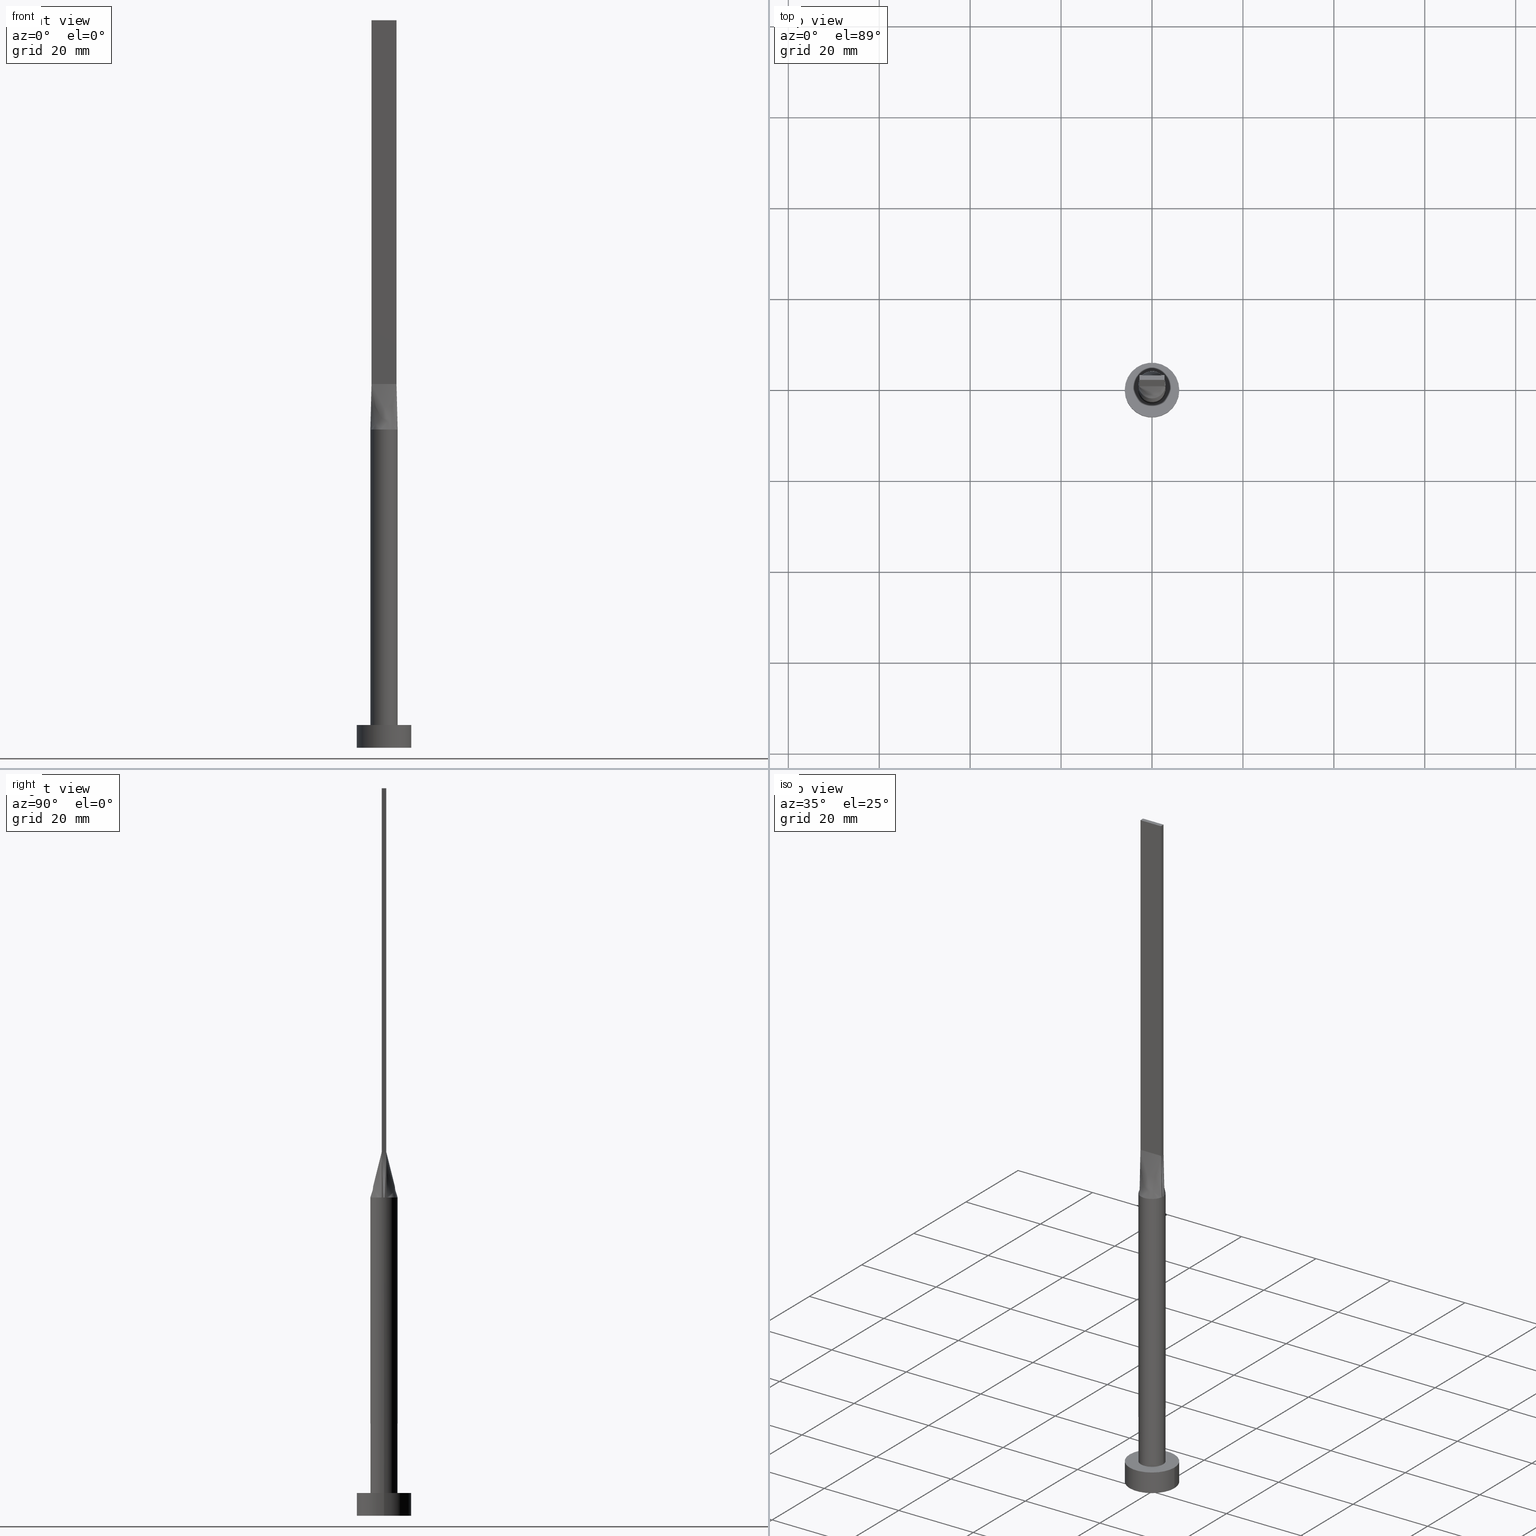
[diagram: canonical four-view strip — front | top / right | iso, engineering-drawing reading convention]
A machine part, canonical four-view strip (front | top / right | iso — engineering-drawing reading convention). The complete STEP part file that produces these views, byte-faithful:
ISO-10303-21;
HEADER;
FILE_DESCRIPTION (( 'STEP AP203' ),
    '1' );
FILE_NAME ('a710.STEP',
    '2023-02-13T10:30:30',
    ( '' ),
    ( '' ),
    'SwSTEP 2.0',
    'SolidWorks 2019',
    '' );
FILE_SCHEMA (( 'CONFIG_CONTROL_DESIGN' ));
ENDSEC;

DATA;
#1 = ORIENTED_EDGE ( 'NONE', *, *, #378, .F. ) ;
#2 = ORIENTED_EDGE ( 'NONE', *, *, #115, .F. ) ;
#3 = CARTESIAN_POINT ( 'NONE',  ( -2.999609730299722887, -0.1803281572999742843, 70.00000000000000000 ) ) ;
#4 = CYLINDRICAL_SURFACE ( 'NONE', #154, 3.000000000000000444 ) ;
#5 = VECTOR ( 'NONE', #41, 1000.000000000000000 ) ;
#6 = CARTESIAN_POINT ( 'NONE',  ( -1.604166666666666963, 0.5000000000000002220, 79.99999999999998579 ) ) ;
#7 = PRODUCT_DEFINITION_FORMATION_WITH_SPECIFIED_SOURCE ( 'LIBOVOLN�', '', #240, .NOT_KNOWN. ) ;
#8 = CARTESIAN_POINT ( 'NONE',  ( -2.750000000000000000, -0.4999999999999994449, 160.0000000000000000 ) ) ;
#9 = EDGE_LOOP ( 'NONE', ( #345, #578, #220, #430, #470 ) ) ;
#10 = PERSON_AND_ORGANIZATION ( #572, #560 ) ;
#11 = ADVANCED_FACE ( 'NONE', ( #549 ), #312, .F. ) ;
#12 = ORIENTED_EDGE ( 'NONE', *, *, #62, .F. ) ;
#13 = CARTESIAN_POINT ( 'NONE',  ( -2.750000000000000000, 0.5000000000000002220, 160.0000000000000000 ) ) ;
#14 = CC_DESIGN_APPROVAL ( #145, ( #536 ) ) ;
#15 = CARTESIAN_POINT ( 'NONE',  ( -0.9166666666666671848, -0.4999999999999995559, 79.99999999999998579 ) ) ;
#16 = ORIENTED_EDGE ( 'NONE', *, *, #566, .T. ) ;
#17 = CARTESIAN_POINT ( 'NONE',  ( -2.750000000000000000, 0.5000000000000002220, 160.0000000000000000 ) ) ;
#18 = ORIENTED_EDGE ( 'NONE', *, *, #83, .F. ) ;
#19 = LINE ( 'NONE', #501, #439 ) ;
#20 = CARTESIAN_POINT ( 'NONE',  ( 1.145833333333333037, 0.5000000000000002220, 79.99999999999998579 ) ) ;
#21 = LINE ( 'NONE', #535, #34 ) ;
#22 = ADVANCED_FACE ( 'NONE', ( #359 ), #270, .F. ) ;
#23 = ORIENTED_EDGE ( 'NONE', *, *, #62, .T. ) ;
#24 = AXIS2_PLACEMENT_3D ( 'NONE', #208, #155, #64 ) ;
#25 = CARTESIAN_POINT ( 'NONE',  ( 2.291666666666666075, -0.4999999999999997780, 79.99999999999998579 ) ) ;
#26 = ADVANCED_FACE ( 'NONE', ( #266 ), #496, .F. ) ;
#27 = APPROVAL_ROLE ( '' ) ;
#28 = CARTESIAN_POINT ( 'NONE',  ( 0.000000000000000000, 0.000000000000000000, 5.000000000000000000 ) ) ;
#29 = CARTESIAN_POINT ( 'NONE',  ( 2.750000000000000000, 0.3333333333333342585, 79.99999999999998579 ) ) ;
#30 = ORIENTED_EDGE ( 'NONE', *, *, #458, .F. ) ;
#31 = CARTESIAN_POINT ( 'NONE',  ( 2.750000000000000000, 0.5000000000000002220, 160.0000000000000000 ) ) ;
#32 = CARTESIAN_POINT ( 'NONE',  ( -2.829409566978765334, 1.041313647073049298, 70.00000000000001421 ) ) ;
#33 = VECTOR ( 'NONE', #363, 1000.000000000000000 ) ;
#34 = VECTOR ( 'NONE', #158, 1000.000000000000000 ) ;
#35 = ORIENTED_EDGE ( 'NONE', *, *, #298, .F. ) ;
#36 = AXIS2_PLACEMENT_3D ( 'NONE', #222, #512, #414 ) ;
#37 = FACE_OUTER_BOUND ( 'NONE', #279, .T. ) ;
#38 = EDGE_CURVE ( 'NONE', #365, #272, #134, .T. ) ;
#39 = APPROVAL_DATE_TIME ( #436, #214 ) ;
#40 = CARTESIAN_POINT ( 'NONE',  ( 2.750000000000000000, 0.1666666666666679619, 79.99999999999998579 ) ) ;
#41 = DIRECTION ( 'NONE',  ( -1.000000000000000000, -0.000000000000000000, -0.000000000000000000 ) ) ;
#42 = LINE ( 'NONE', #8, #455 ) ;
#43 = APPROVAL_DATE_TIME ( #262, #49 ) ;
#44 = CARTESIAN_POINT ( 'NONE',  ( -2.951881273711813858, 0.5367053345652121887, 70.00000000000000000 ) ) ;
#45 = EDGE_CURVE ( 'NONE', #500, #365, #453, .T. ) ;
#46 = CC_DESIGN_PERSON_AND_ORGANIZATION_ASSIGNMENT ( #10, #170, ( #7 ) ) ;
#47 = CYLINDRICAL_SURFACE ( 'NONE', #503, 6.000000000000000888 ) ;
#48 = ADVANCED_FACE ( 'NONE', ( #330 ), #181, .F. ) ;
#49 = APPROVAL ( #444, 'NEUR�EN�' ) ;
#50 = DIRECTION ( 'NONE',  ( 0.000000000000000000, 0.000000000000000000, 1.000000000000000000 ) ) ;
#51 = DIRECTION ( 'NONE',  ( 1.000000000000000000, -5.913830031739115543E-17, 0.000000000000000000 ) ) ;
#52 = ORIENTED_EDGE ( 'NONE', *, *, #178, .F. ) ;
#53 = CIRCLE ( 'NONE', #540, 6.000000000000000888 ) ;
#54 = CARTESIAN_POINT ( 'NONE',  ( 0.000000000000000000, 0.000000000000000000, 70.00000000000000000 ) ) ;
#55 = CARTESIAN_POINT ( 'NONE',  ( -1.882426928433514224, -2.362790634184934291, 69.99999999999998579 ) ) ;
#56 = APPLICATION_CONTEXT ( 'configuration controlled 3d designs of mechanical parts and assemblies' ) ;
#57 = CARTESIAN_POINT ( 'NONE',  ( -1.604166666666666963, -0.4999999999999995559, 79.99999999999998579 ) ) ;
#58 = LINE ( 'NONE', #116, #516 ) ;
#59 = CARTESIAN_POINT ( 'NONE',  ( -1.566158656300002061, 2.589797565249319700, 69.99999999999998579 ) ) ;
#60 = EDGE_LOOP ( 'NONE', ( #276, #370 ) ) ;
#61 = CARTESIAN_POINT ( 'NONE',  ( 1.833333333333332593, -0.4999999999999997780, 79.99999999999998579 ) ) ;
#62 = EDGE_CURVE ( 'NONE', #242, #140, #53, .T. ) ;
#63 = VERTEX_POINT ( 'NONE', #113 ) ;
#64 = DIRECTION ( 'NONE',  ( 1.000000000000000000, 0.000000000000000000, 0.000000000000000000 ) ) ;
#65 = CARTESIAN_POINT ( 'NONE',  ( 2.382399439808187580, 1.857547746650221709, 70.00000000000000000 ) ) ;
#66 = CALENDAR_DATE ( 2023, 13, 2 ) ;
#67 = EDGE_LOOP ( 'NONE', ( #321, #1, #187, #395 ) ) ;
#68 = CARTESIAN_POINT ( 'NONE',  ( 1.882426928433512892, 2.362790634184934291, 69.99999999999998579 ) ) ;
#69 = LINE ( 'NONE', #31, #106 ) ;
#70 = CARTESIAN_POINT ( 'NONE',  ( -2.520833333333333037, 0.5000000000000002220, 79.99999999999998579 ) ) ;
#71 = PERSON_AND_ORGANIZATION_ROLE ( 'design_owner' ) ;
#72 = ORIENTED_EDGE ( 'NONE', *, *, #438, .T. ) ;
#73 = VECTOR ( 'NONE', #209, 1000.000000000000000 ) ;
#74 = CALENDAR_DATE ( 2023, 13, 2 ) ;
#75 = SECURITY_CLASSIFICATION ( '', '', #483 ) ;
#76 = CARTESIAN_POINT ( 'NONE',  ( 2.999804865149861666, 7.183978618307599791E-16, 70.00000000000000000 ) ) ;
#77 = DIRECTION ( 'NONE',  ( -0.000000000000000000, -0.000000000000000000, -1.000000000000000000 ) ) ;
#78 = CARTESIAN_POINT ( 'NONE',  ( 2.999609730299722887, 0.1803281572999744509, 70.00000000000000000 ) ) ;
#79 = CARTESIAN_POINT ( 'NONE',  ( 1.604166666666666519, 0.5000000000000002220, 79.99999999999998579 ) ) ;
#80 = ORIENTED_EDGE ( 'NONE', *, *, #128, .F. ) ;
#81 = ORIENTED_EDGE ( 'NONE', *, *, #504, .T. ) ;
#82 = ORIENTED_EDGE ( 'NONE', *, *, #334, .T. ) ;
#83 = EDGE_CURVE ( 'NONE', #169, #140, #206, .T. ) ;
#84 = APPROVAL_ROLE ( '' ) ;
#85 = DIRECTION ( 'NONE',  ( -0.02015674154923151329, -0.003664862099860196568, 0.9997901152521495582 ) ) ;
#86 = VECTOR ( 'NONE', #248, 1000.000000000000000 ) ;
#87 = DIRECTION ( 'NONE',  ( 1.000000000000000000, -5.913830031739115543E-17, 0.000000000000000000 ) ) ;
#88 = DIRECTION ( 'NONE',  ( 0.000000000000000000, -1.000000000000000000, 0.000000000000000000 ) ) ;
#89 = PERSON_AND_ORGANIZATION ( #572, #560 ) ;
#90 = DIRECTION ( 'NONE',  ( -0.000000000000000000, -0.000000000000000000, -1.000000000000000000 ) ) ;
#91 = EDGE_CURVE ( 'NONE', #523, #294, #568, .T. ) ;
#92 = CARTESIAN_POINT ( 'NONE',  ( -2.983609730299723317, -0.3606563145999489572, 70.00000000000000000 ) ) ;
#93 = FACE_OUTER_BOUND ( 'NONE', #108, .T. ) ;
#94 = CARTESIAN_POINT ( 'NONE',  ( 2.850804865149861644, 0.5183281572999747233, 75.00000000000001421 ) ) ;
#95 = EDGE_CURVE ( 'NONE', #550, #294, #480, .T. ) ;
#96 = LINE ( 'NONE', #543, #5 ) ;
#97 = ORIENTED_EDGE ( 'NONE', *, *, #461, .F. ) ;
#98 = CARTESIAN_POINT ( 'NONE',  ( -2.750000000000000000, 0.5000000000000002220, 160.0000000000000000 ) ) ;
#99 = AXIS2_PLACEMENT_3D ( 'NONE', #570, #122, #299 ) ;
#100 = ORIENTED_EDGE ( 'NONE', *, *, #320, .T. ) ;
#101 = ORIENTED_EDGE ( 'NONE', *, *, #45, .F. ) ;
#102 = CARTESIAN_POINT ( 'NONE',  ( -2.750000000000000000, -0.4999999999999994449, 80.00000000000000000 ) ) ;
#103 = CARTESIAN_POINT ( 'NONE',  ( -1.882426928433513336, 2.362790634184935623, 70.00000000000001421 ) ) ;
#104 = AXIS2_PLACEMENT_3D ( 'NONE', #264, #368, #364 ) ;
#105 = FACE_OUTER_BOUND ( 'NONE', #559, .T. ) ;
#106 = VECTOR ( 'NONE', #196, 1000.000000000000000 ) ;
#107 = AXIS2_PLACEMENT_3D ( 'NONE', #391, #161, #344 ) ;
#108 = EDGE_LOOP ( 'NONE', ( #80, #546, #551, #101, #160, #518 ) ) ;
#109 = CARTESIAN_POINT ( 'NONE',  ( 1.566158656300001395, -2.589797565249319256, 69.99999999999998579 ) ) ;
#110 = CARTESIAN_POINT ( 'NONE',  ( -0.2291666666666670460, 0.5000000000000002220, 79.99999999999998579 ) ) ;
#111 = CC_DESIGN_DATE_AND_TIME_ASSIGNMENT ( #306, #258, ( #75 ) ) ;
#112 = DIRECTION ( 'NONE',  ( 1.000000000000000000, 0.000000000000000000, 0.000000000000000000 ) ) ;
#113 = CARTESIAN_POINT ( 'NONE',  ( -2.951881273711813858, 0.5367053345652121887, 70.00000000000000000 ) ) ;
#114 = CARTESIAN_POINT ( 'NONE',  ( 1.604166666666666075, -0.4999999999999997780, 79.99999999999998579 ) ) ;
#115 = EDGE_CURVE ( 'NONE', #500, #520, #311, .T. ) ;
#116 = CARTESIAN_POINT ( 'NONE',  ( -2.750000000000000000, -0.4999999999999994449, 160.0000000000000000 ) ) ;
#117 = CARTESIAN_POINT ( 'NONE',  ( 0.000000000000000000, 0.000000000000000000, 5.000000000000000000 ) ) ;
#118 = ORIENTED_EDGE ( 'NONE', *, *, #382, .T. ) ;
#119 = CARTESIAN_POINT ( 'NONE',  ( -2.907609730299723250, 0.7786563145999495505, 70.00000000000001421 ) ) ;
#120 = CARTESIAN_POINT ( 'NONE',  ( 2.951609730299722401, 0.5366563145999496687, 70.00000000000000000 ) ) ;
#121 = DIRECTION ( 'NONE',  ( 1.000000000000000000, 0.000000000000000000, 0.000000000000000000 ) ) ;
#122 = DIRECTION ( 'NONE',  ( -0.000000000000000000, -0.000000000000000000, -1.000000000000000000 ) ) ;
#123 = AXIS2_PLACEMENT_3D ( 'NONE', #319, #50, #273 ) ;
#124 = CARTESIAN_POINT ( 'NONE',  ( 0.000000000000000000, 0.000000000000000000, 70.00000000000000000 ) ) ;
#125 = AXIS2_PLACEMENT_3D ( 'NONE', #28, #153, #337 ) ;
#126 = CARTESIAN_POINT ( 'NONE',  ( 2.520833333333333037, 0.5000000000000002220, 79.99999999999998579 ) ) ;
#127 = LOCAL_TIME ( 11, 30, 30.00000000000000000, #191 ) ;
#128 = EDGE_CURVE ( 'NONE', #343, #377, #263, .T. ) ;
#129 = CARTESIAN_POINT ( 'NONE',  ( -2.829409566978765334, 1.041313647073049298, 70.00000000000001421 ) ) ;
#130 = EDGE_LOOP ( 'NONE', ( #454, #81, #255, #351, #397 ) ) ;
#131 = CARTESIAN_POINT ( 'NONE',  ( -2.750000000000000000, 0.1666666666666652696, 79.99999999999998579 ) ) ;
#132 = PERSON_AND_ORGANIZATION ( #572, #560 ) ;
#133 = ORIENTED_EDGE ( 'NONE', *, *, #165, .T. ) ;
#134 = CIRCLE ( 'NONE', #195, 3.000000000000000444 ) ;
#135 = CARTESIAN_POINT ( 'NONE',  ( -2.951609730299722845, -0.5366563145999487805, 70.00000000000000000 ) ) ;
#136 = CC_DESIGN_PERSON_AND_ORGANIZATION_ASSIGNMENT ( #388, #71, ( #240 ) ) ;
#137 = CIRCLE ( 'NONE', #281, 3.000000000000000444 ) ;
#138 = COORDINATED_UNIVERSAL_TIME_OFFSET ( 1, 0, .AHEAD. ) ;
#139 = LINE ( 'NONE', #493, #73 ) ;
#140 = VERTEX_POINT ( 'NONE', #548 ) ;
#141 = CARTESIAN_POINT ( 'NONE',  ( 0.000000000000000000, 0.000000000000000000, 70.00000000000000000 ) ) ;
#142 = CARTESIAN_POINT ( 'NONE',  ( -2.907609730299723250, -0.7786563145999485513, 70.00000000000001421 ) ) ;
#143 = CARTESIAN_POINT ( 'NONE',  ( 2.750000000000000000, 0.5000000000000002220, 160.0000000000000000 ) ) ;
#144 = CARTESIAN_POINT ( 'NONE',  ( -3.000000000000000444, 0.000000000000000000, 5.000000000000000000 ) ) ;
#145 = APPROVAL ( #468, 'NEUR�EN�' ) ;
#146 = CC_DESIGN_DATE_AND_TIME_ASSIGNMENT ( #300, #241, ( #536 ) ) ;
#147 = CARTESIAN_POINT ( 'NONE',  ( 0.2291666666666659635, -0.4999999999999995559, 79.99999999999998579 ) ) ;
#148 = EDGE_LOOP ( 'NONE', ( #411, #442 ) ) ;
#149 = CARTESIAN_POINT ( 'NONE',  ( -2.951609730299722845, -0.5366563145999487805, 70.00000000000000000 ) ) ;
#150 = DIRECTION ( 'NONE',  ( 0.000000000000000000, 0.000000000000000000, 1.000000000000000000 ) ) ;
#151 = CARTESIAN_POINT ( 'NONE',  ( 2.567367750129863957, 1.580669302822274913, 70.00000000000000000 ) ) ;
#152 = DATE_AND_TIME ( #381, #127 ) ;
#153 = DIRECTION ( 'NONE',  ( 0.000000000000000000, 0.000000000000000000, 1.000000000000000000 ) ) ;
#154 = AXIS2_PLACEMENT_3D ( 'NONE', #175, #544, #314 ) ;
#155 = DIRECTION ( 'NONE',  ( 0.000000000000000000, 0.000000000000000000, 1.000000000000000000 ) ) ;
#156 = ORIENTED_EDGE ( 'NONE', *, *, #571, .T. ) ;
#157 = CARTESIAN_POINT ( 'NONE',  ( -1.882426928433513336, 2.362790634184935623, 70.00000000000001421 ) ) ;
#158 = DIRECTION ( 'NONE',  ( -1.000000000000000000, 0.000000000000000000, 0.000000000000000000 ) ) ;
#159 = PERSON_AND_ORGANIZATION ( #572, #560 ) ;
#160 = ORIENTED_EDGE ( 'NONE', *, *, #115, .T. ) ;
#161 = DIRECTION ( 'NONE',  ( 0.000000000000000000, 0.000000000000000000, 1.000000000000000000 ) ) ;
#162 = ORIENTED_EDGE ( 'NONE', *, *, #465, .F. ) ;
#163 = CARTESIAN_POINT ( 'NONE',  ( 2.750000000000000000, 0.5000000000000002220, 80.00000000000000000 ) ) ;
#164 =( NAMED_UNIT ( * ) PLANE_ANGLE_UNIT ( ) SI_UNIT ( $, .RADIAN. ) );
#165 = EDGE_CURVE ( 'NONE', #421, #565, #139, .T. ) ;
#166 = CC_DESIGN_APPROVAL ( #49, ( #75 ) ) ;
#167 = VERTEX_POINT ( 'NONE', #580 ) ;
#168 = LINE ( 'NONE', #432, #86 ) ;
#169 = VERTEX_POINT ( 'NONE', #533 ) ;
#170 = PERSON_AND_ORGANIZATION_ROLE ( 'creator' ) ;
#171 = EDGE_LOOP ( 'NONE', ( #72, #289, #466, #508 ) ) ;
#172 = PRODUCT_RELATED_PRODUCT_CATEGORY ( 'detail', '', ( #240 ) ) ;
#173 = CARTESIAN_POINT ( 'NONE',  ( 0.4172881767044975820, 3.000000000000000000, 70.00000000000000000 ) ) ;
#174 = DIRECTION ( 'NONE',  ( 1.000000000000000000, 0.000000000000000000, 0.000000000000000000 ) ) ;
#175 = CARTESIAN_POINT ( 'NONE',  ( 0.000000000000000000, 0.000000000000000000, 70.00000000000000000 ) ) ;
#176 = CARTESIAN_POINT ( 'NONE',  ( 0.8331239790496237640, 2.909606296598776787, 69.99999999999998579 ) ) ;
#177 = EDGE_LOOP ( 'NONE', ( #256, #35, #418, #305 ) ) ;
#178 = EDGE_CURVE ( 'NONE', #63, #500, #353, .T. ) ;
#179 = DIRECTION ( 'NONE',  ( -0.000000000000000000, 0.000000000000000000, -1.000000000000000000 ) ) ;
#180 = CIRCLE ( 'NONE', #36, 3.000000000000000444 ) ;
#181 = PLANE ( 'NONE',  #232 ) ;
#182 = DIRECTION ( 'NONE',  ( -0.02015674154923151329, -0.003664862099860239936, -0.9997901152521495582 ) ) ;
#183 = ORIENTED_EDGE ( 'NONE', *, *, #459, .T. ) ;
#184 = CARTESIAN_POINT ( 'NONE',  ( -0.4583333333333340365, -0.4999999999999995559, 79.99999999999998579 ) ) ;
#185 = DIRECTION ( 'NONE',  ( 1.000000000000000000, 0.000000000000000000, 0.000000000000000000 ) ) ;
#186 = EDGE_CURVE ( 'NONE', #294, #421, #96, .T. ) ;
#187 = ORIENTED_EDGE ( 'NONE', *, *, #197, .F. ) ;
#188 = DIRECTION ( 'NONE',  ( -0.000000000000000000, -0.000000000000000000, -1.000000000000000000 ) ) ;
#189 = CIRCLE ( 'NONE', #347, 3.000000000000000444 ) ;
#190 = CARTESIAN_POINT ( 'NONE',  ( -1.833333333333333481, -0.4999999999999995559, 79.99999999999998579 ) ) ;
#191 = COORDINATED_UNIVERSAL_TIME_OFFSET ( 1, 0, .AHEAD. ) ;
#192 = CARTESIAN_POINT ( 'NONE',  ( -0.4583333333333337034, 0.5000000000000002220, 79.99999999999998579 ) ) ;
#193 = CARTESIAN_POINT ( 'NONE',  ( -6.000000000000000888, 0.000000000000000000, 0.000000000000000000 ) ) ;
#194 = FACE_OUTER_BOUND ( 'NONE', #130, .T. ) ;
#195 = AXIS2_PLACEMENT_3D ( 'NONE', #141, #553, #497 ) ;
#196 = DIRECTION ( 'NONE',  ( -0.000000000000000000, -0.000000000000000000, -1.000000000000000000 ) ) ;
#197 = EDGE_CURVE ( 'NONE', #427, #304, #42, .T. ) ;
#198 = CIRCLE ( 'NONE', #125, 6.000000000000000888 ) ;
#199 = AXIS2_PLACEMENT_3D ( 'NONE', #13, #555, #179 ) ;
#200 = COORDINATED_UNIVERSAL_TIME_OFFSET ( 1, 0, .AHEAD. ) ;
#201 = CARTESIAN_POINT ( 'NONE',  ( 2.951871110830718514, 0.5367036202482695639, 70.00000000000000000 ) ) ;
#202 = PLANE ( 'NONE',  #107 ) ;
#203 = CC_DESIGN_PERSON_AND_ORGANIZATION_ASSIGNMENT ( #89, #478, ( #75 ) ) ;
#204 = PERSON_AND_ORGANIZATION ( #572, #560 ) ;
#205 = EDGE_LOOP ( 'NONE', ( #12, #217 ) ) ;
#206 = LINE ( 'NONE', #428, #211 ) ;
#207 = ADVANCED_FACE ( 'NONE', ( #213 ), #528, .T. ) ;
#208 = CARTESIAN_POINT ( 'NONE',  ( 0.000000000000000000, 0.000000000000000000, 0.000000000000000000 ) ) ;
#209 = DIRECTION ( 'NONE',  ( 0.000000000000000000, -1.000000000000000000, 0.000000000000000000 ) ) ;
#210 = CARTESIAN_POINT ( 'NONE',  ( -2.750000000000000000, -0.4999999999999994449, 160.0000000000000000 ) ) ;
#211 = VECTOR ( 'NONE', #77, 1000.000000000000000 ) ;
#212 = LINE ( 'NONE', #526, #325 ) ;
#213 = FACE_OUTER_BOUND ( 'NONE', #9, .T. ) ;
#214 = APPROVAL ( #342, 'NEUR�EN�' ) ;
#215 = CARTESIAN_POINT ( 'NONE',  ( 2.750000000000000000, 0.5000000000000002220, 80.00000000000000000 ) ) ;
#216 = CARTESIAN_POINT ( 'NONE',  ( -2.750000000000000000, -0.3333333333333339255, 79.99999999999998579 ) ) ;
#217 = ORIENTED_EDGE ( 'NONE', *, *, #271, .F. ) ;
#218 = ADVANCED_FACE ( 'NONE', ( #486 ), #47, .T. ) ;
#219 = ORIENTED_EDGE ( 'NONE', *, *, #83, .T. ) ;
#220 = ORIENTED_EDGE ( 'NONE', *, *, #566, .F. ) ;
#221 = ADVANCED_FACE ( 'NONE', ( #360 ), #288, .T. ) ;
#222 = CARTESIAN_POINT ( 'NONE',  ( 0.000000000000000000, 0.000000000000000000, 5.000000000000000000 ) ) ;
#223 = CARTESIAN_POINT ( 'NONE',  ( -0.4172881767044983592, -2.999999999999999556, 70.00000000000000000 ) ) ;
#224 = CIRCLE ( 'NONE', #310, 6.000000000000000888 ) ;
#225 = CARTESIAN_POINT ( 'NONE',  ( -0.8331239790496242081, -2.909606296598777231, 69.99999999999998579 ) ) ;
#226 = CARTESIAN_POINT ( 'NONE',  ( -0.4172881767044976375, 2.999999999999999556, 69.99999999999998579 ) ) ;
#227 = ADVANCED_FACE ( 'NONE', ( #513, #563 ), #335, .T. ) ;
#228 = CARTESIAN_POINT ( 'NONE',  ( -2.907609730299723250, 0.7786563145999495505, 70.00000000000001421 ) ) ;
#229 = ORIENTED_EDGE ( 'NONE', *, *, #38, .T. ) ;
#230 = CARTESIAN_POINT ( 'NONE',  ( 1.882426928433513114, -2.362790634184936511, 70.00000000000001421 ) ) ;
#231 = DIRECTION ( 'NONE',  ( 0.000000000000000000, 0.000000000000000000, 1.000000000000000000 ) ) ;
#232 = AXIS2_PLACEMENT_3D ( 'NONE', #143, #373, #499 ) ;
#233 = CARTESIAN_POINT ( 'NONE',  ( -2.567367750129864845, -1.580669302822274691, 70.00000000000000000 ) ) ;
#234 = CARTESIAN_POINT ( 'NONE',  ( 0.8331239790496237640, 2.909606296598776787, 69.99999999999998579 ) ) ;
#235 = CC_DESIGN_SECURITY_CLASSIFICATION ( #75, ( #7 ) ) ;
#236 = ORIENTED_EDGE ( 'NONE', *, *, #292, .F. ) ;
#237 = CARTESIAN_POINT ( 'NONE',  ( 2.750000000000000000, -0.4999999999999997780, 80.00000000000000000 ) ) ;
#238 = CARTESIAN_POINT ( 'NONE',  ( 0.2291666666666662966, 0.5000000000000002220, 80.00000000000000000 ) ) ;
#239 = CARTESIAN_POINT ( 'NONE',  ( 2.951896064709005785, -0.5367080392066734262, 70.00000000000000000 ) ) ;
#240 = PRODUCT ( 'a710', 'a710', '', ( #290 ) ) ;
#241 = DATE_TIME_ROLE ( 'creation_date' ) ;
#242 = VERTEX_POINT ( 'NONE', #193 ) ;
#243 = CARTESIAN_POINT ( 'NONE',  ( 2.850804865149861200, -0.5183281572999745013, 75.00000000000001421 ) ) ;
#244 = CARTESIAN_POINT ( 'NONE',  ( 2.999609730299722887, -0.1803281572999752003, 70.00000000000000000 ) ) ;
#245 = CARTESIAN_POINT ( 'NONE',  ( 2.291666666666666519, 0.5000000000000002220, 79.99999999999998579 ) ) ;
#246 = ORIENTED_EDGE ( 'NONE', *, *, #315, .F. ) ;
#247 = AXIS2_PLACEMENT_3D ( 'NONE', #440, #354, #174 ) ;
#248 = DIRECTION ( 'NONE',  ( -0.000000000000000000, -0.000000000000000000, -1.000000000000000000 ) ) ;
#249 = AXIS2_PLACEMENT_3D ( 'NONE', #385, #507, #112 ) ;
#250 = LOCAL_TIME ( 11, 30, 30.00000000000000000, #200 ) ;
#251 =( NAMED_UNIT ( * ) SI_UNIT ( $, .STERADIAN. ) SOLID_ANGLE_UNIT ( ) );
#252 = CARTESIAN_POINT ( 'NONE',  ( -2.951885853416577277, -0.5367063210726346068, 70.00000000000000000 ) ) ;
#253 = CARTESIAN_POINT ( 'NONE',  ( 2.907609730299723250, -0.7786563145999499946, 70.00000000000001421 ) ) ;
#254 = EDGE_LOOP ( 'NONE', ( #229, #100, #30, #16 ) ) ;
#255 = ORIENTED_EDGE ( 'NONE', *, *, #91, .T. ) ;
#256 = ORIENTED_EDGE ( 'NONE', *, *, #95, .T. ) ;
#257 = SHAPE_DEFINITION_REPRESENTATION ( #274, #293 ) ;
#258 = DATE_TIME_ROLE ( 'classification_date' ) ;
#259 = CARTESIAN_POINT ( 'NONE',  ( 0.000000000000000000, 0.000000000000000000, 5.000000000000000000 ) ) ;
#260 = CARTESIAN_POINT ( 'NONE',  ( -1.566158656300002061, 2.589797565249319700, 69.99999999999998579 ) ) ;
#261 = CARTESIAN_POINT ( 'NONE',  ( -2.850804865149861200, 0.5183281572999746123, 75.00000000000001421 ) ) ;
#262 = DATE_AND_TIME ( #541, #408 ) ;
#263 = LINE ( 'NONE', #403, #33 ) ;
#264 = CARTESIAN_POINT ( 'NONE',  ( 2.750000000000000000, -0.4999999999999997780, 160.0000000000000000 ) ) ;
#265 = CARTESIAN_POINT ( 'NONE',  ( 2.750000000000000000, -0.4999999999999997780, 160.0000000000000000 ) ) ;
#266 = FACE_OUTER_BOUND ( 'NONE', #67, .T. ) ;
#267 = CARTESIAN_POINT ( 'NONE',  ( -2.951609730299722401, 0.5366563145999495577, 70.00000000000000000 ) ) ;
#268 = FACE_OUTER_BOUND ( 'NONE', #171, .T. ) ;
#269 = CIRCLE ( 'NONE', #456, 6.000000000000000888 ) ;
#270 = PLANE ( 'NONE',  #123 ) ;
#271 = EDGE_CURVE ( 'NONE', #140, #242, #224, .T. ) ;
#272 = VERTEX_POINT ( 'NONE', #239 ) ;
#273 = DIRECTION ( 'NONE',  ( 1.000000000000000000, 0.000000000000000000, -0.000000000000000000 ) ) ;
#274 = PRODUCT_DEFINITION_SHAPE ( 'NONE', 'NONE',  #536 ) ;
#275 = CC_DESIGN_PERSON_AND_ORGANIZATION_ASSIGNMENT ( #515, #472, ( #536 ) ) ;
#276 = ORIENTED_EDGE ( 'NONE', *, *, #301, .F. ) ;
#277 = LINE ( 'NONE', #17, #529 ) ;
#278 = VECTOR ( 'NONE', #85, 1000.000000000000114 ) ;
#279 = EDGE_LOOP ( 'NONE', ( #410, #118, #361, #384 ) ) ;
#280 = CARTESIAN_POINT ( 'NONE',  ( -2.291666666666666519, -0.4999999999999994449, 79.99999999999998579 ) ) ;
#281 = AXIS2_PLACEMENT_3D ( 'NONE', #124, #302, #477 ) ;
#282 = DIRECTION ( 'NONE',  ( 0.000000000000000000, 0.000000000000000000, 1.000000000000000000 ) ) ;
#283 = B_SPLINE_CURVE_WITH_KNOTS ( 'NONE', 3,
 ( #201, #390, #524, #151, #65, #68, #394, #176, #173, #352, #538, #260, #157, #441, #532, #129, #228, #44 ),
 .UNSPECIFIED., .F., .F.,
 ( 4, 2, 2, 2, 2, 2, 2, 2, 4 ),
 ( 0.000000000000000000, 0.1250000000000000000, 0.2500000000000000000, 0.3750000000000000000, 0.5000000000000000000, 0.6250000000000000000, 0.7500000000000000000, 0.8750000000000000000, 1.000000000000000000 ),
 .UNSPECIFIED. ) ;
#284 = ORIENTED_EDGE ( 'NONE', *, *, #504, .F. ) ;
#285 = CARTESIAN_POINT ( 'NONE',  ( -0.2291666666666674346, -0.4999999999999995559, 80.00000000000000000 ) ) ;
#286 = CARTESIAN_POINT ( 'NONE',  ( 2.567367750129864401, -1.580669302822276023, 70.00000000000001421 ) ) ;
#287 = CARTESIAN_POINT ( 'NONE',  ( 0.4583333333333330373, 0.5000000000000002220, 79.99999999999998579 ) ) ;
#288 = CYLINDRICAL_SURFACE ( 'NONE', #569, 6.000000000000000888 ) ;
#289 = ORIENTED_EDGE ( 'NONE', *, *, #398, .T. ) ;
#290 = MECHANICAL_CONTEXT ( 'NONE', #350, 'mechanical' ) ;
#291 = DIRECTION ( 'NONE',  ( 0.000000000000000000, 0.000000000000000000, 1.000000000000000000 ) ) ;
#292 = EDGE_CURVE ( 'NONE', #169, #167, #198, .T. ) ;
#293 = ADVANCED_BREP_SHAPE_REPRESENTATION ( 'a710', ( #429, #24 ), #505 ) ;
#294 = VERTEX_POINT ( 'NONE', #474 ) ;
#295 = CARTESIAN_POINT ( 'NONE',  ( 2.951609730299722845, 0.5366563145999491136, 70.00000000000000000 ) ) ;
#296 = CARTESIAN_POINT ( 'NONE',  ( 2.829409566978765778, 1.041313647073049298, 70.00000000000000000 ) ) ;
#297 = EDGE_LOOP ( 'NONE', ( #18, #97, #82, #23 ) ) ;
#298 = EDGE_CURVE ( 'NONE', #316, #294, #69, .T. ) ;
#299 = DIRECTION ( 'NONE',  ( -1.000000000000000000, 0.000000000000000000, 0.000000000000000000 ) ) ;
#300 = DATE_AND_TIME ( #66, #250 ) ;
#301 = EDGE_CURVE ( 'NONE', #520, #377, #542, .T. ) ;
#302 = DIRECTION ( 'NONE',  ( 0.000000000000000000, 0.000000000000000000, 1.000000000000000000 ) ) ;
#303 = CARTESIAN_POINT ( 'NONE',  ( 2.750000000000000000, 0.5000000000000002220, 80.00000000000000000 ) ) ;
#304 = VERTEX_POINT ( 'NONE', #462 ) ;
#305 = ORIENTED_EDGE ( 'NONE', *, *, #378, .T. ) ;
#306 = DATE_AND_TIME ( #447, #318 ) ;
#307 = DIRECTION ( 'NONE',  ( -0.000000000000000000, 1.000000000000000000, -0.000000000000000000 ) ) ;
#308 = AXIS2_PLACEMENT_3D ( 'NONE', #54, #509, #121 ) ;
#309 = CARTESIAN_POINT ( 'NONE',  ( -2.750000000000000000, -0.4999999999999993339, 80.00000000000000000 ) ) ;
#310 = AXIS2_PLACEMENT_3D ( 'NONE', #420, #231, #517 ) ;
#311 = LINE ( 'NONE', #488, #405 ) ;
#312 = PLANE ( 'NONE',  #104 ) ;
#313 = CARTESIAN_POINT ( 'NONE',  ( -0.9166666666666669627, 0.5000000000000002220, 79.99999999999998579 ) ) ;
#314 = DIRECTION ( 'NONE',  ( -1.000000000000000000, 0.000000000000000000, 0.000000000000000000 ) ) ;
#315 = EDGE_CURVE ( 'NONE', #316, #424, #21, .T. ) ;
#316 = VERTEX_POINT ( 'NONE', #481 ) ;
#317 = EDGE_CURVE ( 'NONE', #304, #316, #212, .T. ) ;
#318 = LOCAL_TIME ( 11, 30, 30.00000000000000000, #492 ) ;
#319 = CARTESIAN_POINT ( 'NONE',  ( 0.000000000000000000, 0.000000000000000000, 0.000000000000000000 ) ) ;
#320 = EDGE_CURVE ( 'NONE', #272, #550, #341, .T. ) ;
#321 = ORIENTED_EDGE ( 'NONE', *, *, #458, .T. ) ;
#322 = DIRECTION ( 'NONE',  ( 1.000000000000000000, 0.000000000000000000, 0.000000000000000000 ) ) ;
#323 = CARTESIAN_POINT ( 'NONE',  ( 2.750000000000000000, -0.4999999999999997780, 80.00000000000000000 ) ) ;
#324 = CARTESIAN_POINT ( 'NONE',  ( 0.8331239790496235420, -2.909606296598777231, 70.00000000000001421 ) ) ;
#325 = VECTOR ( 'NONE', #396, 1000.000000000000000 ) ;
#326 = APPROVAL_PERSON_ORGANIZATION ( #204, #214, #522 ) ;
#327 = CARTESIAN_POINT ( 'NONE',  ( -2.567367750129864401, 1.580669302822275357, 70.00000000000001421 ) ) ;
#328 = ORIENTED_EDGE ( 'NONE', *, *, #334, .F. ) ;
#329 = CARTESIAN_POINT ( 'NONE',  ( 0.000000000000000000, 0.000000000000000000, 5.000000000000000000 ) ) ;
#330 = FACE_OUTER_BOUND ( 'NONE', #333, .T. ) ;
#331 = DIRECTION ( 'NONE',  ( -0.000000000000000000, -0.000000000000000000, -1.000000000000000000 ) ) ;
#332 = CARTESIAN_POINT ( 'NONE',  ( 1.566158656300002061, 2.589797565249318811, 70.00000000000000000 ) ) ;
#333 = EDGE_LOOP ( 'NONE', ( #437, #449, #246, #473 ) ) ;
#334 = EDGE_CURVE ( 'NONE', #167, #242, #168, .T. ) ;
#335 = PLANE ( 'NONE',  #376 ) ;
#336 = APPROVAL_DATE_TIME ( #152, #145 ) ;
#337 = DIRECTION ( 'NONE',  ( 1.000000000000000000, 0.000000000000000000, 0.000000000000000000 ) ) ;
#338 = B_SPLINE_SURFACE_WITH_KNOTS ( 'NONE', 3, 1, ( 
 ( #120, #163 ),
 ( #531, #126 ),
 ( #296, #245 ),
 ( #349, #389 ),
 ( #575, #79 ),
 ( #479, #20 ),
 ( #332, #469 ),
 ( #234, #287 ),
 ( #502, #238 ),
 ( #226, #110 ),
 ( #426, #192 ),
 ( #59, #313 ),
 ( #103, #452 ),
 ( #400, #6 ),
 ( #327, #556 ),
 ( #32, #471 ),
 ( #119, #70 ),
 ( #433, #346 ) ),
 .UNSPECIFIED., .F., .F., .F.,
 ( 4, 2, 2, 2, 2, 2, 2, 2, 4 ),
 ( 2, 2 ),
 ( 0.000000000000000000, 0.1250000000000000000, 0.2500000000000000000, 0.3750000000000000000, 0.5000000000000000000, 0.6250000000000000000, 0.7500000000000000000, 0.8750000000000000000, 1.000000000000000000 ),
 ( 0.000000000000000000, 1.000000000000000000 ),
 .UNSPECIFIED. ) ;
#339 = CC_DESIGN_APPROVAL ( #214, ( #7 ) ) ;
#340 = CARTESIAN_POINT ( 'NONE',  ( 2.750000000000000000, -0.1666666666666653529, 79.99999999999998579 ) ) ;
#341 = LINE ( 'NONE', #243, #445 ) ;
#342 = APPROVAL_STATUS ( 'not_yet_approved' ) ;
#343 = VERTEX_POINT ( 'NONE', #76 ) ;
#344 = DIRECTION ( 'NONE',  ( 1.000000000000000000, 0.000000000000000000, -0.000000000000000000 ) ) ;
#345 = ORIENTED_EDGE ( 'NONE', *, *, #178, .T. ) ;
#346 = CARTESIAN_POINT ( 'NONE',  ( -2.750000000000000000, 0.5000000000000002220, 80.00000000000000000 ) ) ;
#347 = AXIS2_PLACEMENT_3D ( 'NONE', #562, #150, #561 ) ;
#348 = CARTESIAN_POINT ( 'NONE',  ( 2.750000000000000000, -0.3333333333333324267, 79.99999999999998579 ) ) ;
#349 = CARTESIAN_POINT ( 'NONE',  ( 2.567367750129863957, 1.580669302822274913, 70.00000000000000000 ) ) ;
#350 = APPLICATION_CONTEXT ( 'configuration controlled 3d designs of mechanical parts and assemblies' ) ;
#351 = ORIENTED_EDGE ( 'NONE', *, *, #95, .F. ) ;
#352 = CARTESIAN_POINT ( 'NONE',  ( -0.4172881767044976375, 2.999999999999999556, 69.99999999999998579 ) ) ;
#353 = CIRCLE ( 'NONE', #247, 3.000000000000000444 ) ;
#354 = DIRECTION ( 'NONE',  ( 0.000000000000000000, 0.000000000000000000, 1.000000000000000000 ) ) ;
#355 = ORIENTED_EDGE ( 'NONE', *, *, #128, .T. ) ;
#356 = ADVANCED_FACE ( 'NONE', ( #386 ), #521, .T. ) ;
#357 = VECTOR ( 'NONE', #547, 1000.000000000000000 ) ;
#358 = ADVANCED_FACE ( 'NONE', ( #37 ), #202, .T. ) ;
#359 = FACE_OUTER_BOUND ( 'NONE', #205, .T. ) ;
#360 = FACE_OUTER_BOUND ( 'NONE', #297, .T. ) ;
#361 = ORIENTED_EDGE ( 'NONE', *, *, #197, .T. ) ;
#362 = EDGE_CURVE ( 'NONE', #272, #343, #137, .T. ) ;
#363 = DIRECTION ( 'NONE',  ( -0.000000000000000000, -0.000000000000000000, -1.000000000000000000 ) ) ;
#364 = DIRECTION ( 'NONE',  ( 0.000000000000000000, 0.000000000000000000, 1.000000000000000000 ) ) ;
#365 = VERTEX_POINT ( 'NONE', #252 ) ;
#366 = PERSON_AND_ORGANIZATION ( #572, #560 ) ;
#367 = DIRECTION ( 'NONE',  ( 5.913830031739115543E-17, 1.000000000000000000, -0.000000000000000000 ) ) ;
#368 = DIRECTION ( 'NONE',  ( -1.000000000000000000, 0.000000000000000000, 0.000000000000000000 ) ) ;
#369 = FACE_OUTER_BOUND ( 'NONE', #254, .T. ) ;
#370 = ORIENTED_EDGE ( 'NONE', *, *, #459, .F. ) ;
#371 = CARTESIAN_POINT ( 'NONE',  ( -2.999804865149861666, -2.046477192139111704E-15, 70.00000000000000000 ) ) ;
#372 = CARTESIAN_POINT ( 'NONE',  ( -1.566158656300002727, -2.589797565249318811, 70.00000000000000000 ) ) ;
#373 = DIRECTION ( 'NONE',  ( 0.000000000000000000, -1.000000000000000000, 0.000000000000000000 ) ) ;
#374 = B_SPLINE_SURFACE_WITH_KNOTS ( 'NONE', 3, 1, ( 
 ( #149, #554 ),
 ( #142, #451 ),
 ( #417, #280 ),
 ( #233, #190 ),
 ( #457, #57 ),
 ( #55, #463 ),
 ( #372, #15 ),
 ( #225, #184 ),
 ( #223, #285 ),
 ( #558, #147 ),
 ( #324, #506 ),
 ( #109, #460 ),
 ( #230, #419 ),
 ( #510, #114 ),
 ( #286, #61 ),
 ( #422, #25 ),
 ( #253, #475 ),
 ( #527, #392 ) ),
 .UNSPECIFIED., .F., .F., .F.,
 ( 4, 2, 2, 2, 2, 2, 2, 2, 4 ),
 ( 2, 2 ),
 ( 0.000000000000000000, 0.1250000000000000000, 0.2500000000000000000, 0.3750000000000000000, 0.5000000000000000000, 0.6250000000000000000, 0.7500000000000000000, 0.8750000000000000000, 1.000000000000000000 ),
 ( 0.000000000000000000, 1.000000000000000000 ),
 .UNSPECIFIED. ) ;
#375 = PLANE ( 'NONE',  #199 ) ;
#376 = AXIS2_PLACEMENT_3D ( 'NONE', #117, #291, #567 ) ;
#377 = VERTEX_POINT ( 'NONE', #487 ) ;
#378 = EDGE_CURVE ( 'NONE', #304, #550, #412, .T. ) ;
#379 = CARTESIAN_POINT ( 'NONE',  ( -2.750000000000000000, -0.4999999999999994449, 80.00000000000000000 ) ) ;
#380 = DIRECTION ( 'NONE',  ( -1.000000000000000000, 0.000000000000000000, 0.000000000000000000 ) ) ;
#381 = CALENDAR_DATE ( 2023, 13, 2 ) ;
#382 = EDGE_CURVE ( 'NONE', #424, #427, #443, .T. ) ;
#383 =( LENGTH_UNIT ( ) NAMED_UNIT ( * ) SI_UNIT ( .MILLI., .METRE. ) );
#384 = ORIENTED_EDGE ( 'NONE', *, *, #317, .T. ) ;
#385 = CARTESIAN_POINT ( 'NONE',  ( 0.000000000000000000, 0.000000000000000000, 5.000000000000000000 ) ) ;
#386 = FACE_OUTER_BOUND ( 'NONE', #534, .T. ) ;
#387 = VECTOR ( 'NONE', #51, 1000.000000000000000 ) ;
#388 = PERSON_AND_ORGANIZATION ( #572, #560 ) ;
#389 = CARTESIAN_POINT ( 'NONE',  ( 1.833333333333333037, 0.5000000000000002220, 79.99999999999998579 ) ) ;
#390 = CARTESIAN_POINT ( 'NONE',  ( 2.907609730299723250, 0.7786563145999496616, 70.00000000000001421 ) ) ;
#391 = CARTESIAN_POINT ( 'NONE',  ( 0.000000000000000000, 0.000000000000000000, 160.0000000000000000 ) ) ;
#392 = CARTESIAN_POINT ( 'NONE',  ( 2.750000000000000000, -0.4999999999999997780, 80.00000000000000000 ) ) ;
#393 = UNCERTAINTY_MEASURE_WITH_UNIT (LENGTH_MEASURE( 1.000000000000000082E-05 ), #383, 'distance_accuracy_value', 'NONE');
#394 = CARTESIAN_POINT ( 'NONE',  ( 1.566158656300002061, 2.589797565249318811, 70.00000000000000000 ) ) ;
#395 = ORIENTED_EDGE ( 'NONE', *, *, #465, .T. ) ;
#396 = DIRECTION ( 'NONE',  ( 0.000000000000000000, 1.000000000000000000, 0.000000000000000000 ) ) ;
#397 = ORIENTED_EDGE ( 'NONE', *, *, #320, .F. ) ;
#398 = EDGE_CURVE ( 'NONE', #63, #421, #491, .T. ) ;
#399 = CARTESIAN_POINT ( 'NONE',  ( -2.999609730299722887, 0.1803281572999750337, 70.00000000000000000 ) ) ;
#400 = CARTESIAN_POINT ( 'NONE',  ( -2.382399439808186692, 1.857547746650221265, 70.00000000000001421 ) ) ;
#401 = DIRECTION ( 'NONE',  ( -0.000000000000000000, -0.000000000000000000, -1.000000000000000000 ) ) ;
#402 = DIRECTION ( 'NONE',  ( 0.02015674154923147166, -0.003664862099860175318, 0.9997901152521495582 ) ) ;
#403 = CARTESIAN_POINT ( 'NONE',  ( 3.000000000000000444, 3.673940397442060361E-16, 70.00000000000000000 ) ) ;
#404 = VECTOR ( 'NONE', #307, 1000.000000000000000 ) ;
#405 = VECTOR ( 'NONE', #90, 1000.000000000000000 ) ;
#406 = ADVANCED_FACE ( 'NONE', ( #93 ), #4, .T. ) ;
#407 = DIRECTION ( 'NONE',  ( -1.000000000000000000, 0.000000000000000000, 0.000000000000000000 ) ) ;
#408 = LOCAL_TIME ( 11, 30, 30.00000000000000000, #138 ) ;
#409 = CARTESIAN_POINT ( 'NONE',  ( -2.750000000000000000, 0.5000000000000002220, 80.00000000000000000 ) ) ;
#410 = ORIENTED_EDGE ( 'NONE', *, *, #315, .T. ) ;
#411 = ORIENTED_EDGE ( 'NONE', *, *, #461, .T. ) ;
#412 = LINE ( 'NONE', #265, #357 ) ;
#413 = DIRECTION ( 'NONE',  ( -1.000000000000000000, 5.913830031739115543E-17, 0.000000000000000000 ) ) ;
#414 = DIRECTION ( 'NONE',  ( 1.000000000000000000, 0.000000000000000000, 0.000000000000000000 ) ) ;
#415 = APPROVAL_PERSON_ORGANIZATION ( #132, #49, #84 ) ;
#416 = DIRECTION ( 'NONE',  ( 0.000000000000000000, 0.000000000000000000, 1.000000000000000000 ) ) ;
#417 = CARTESIAN_POINT ( 'NONE',  ( -2.829409566978767110, -1.041313647073048854, 70.00000000000000000 ) ) ;
#418 = ORIENTED_EDGE ( 'NONE', *, *, #317, .F. ) ;
#419 = CARTESIAN_POINT ( 'NONE',  ( 1.145833333333332371, -0.4999999999999996669, 79.99999999999998579 ) ) ;
#420 = CARTESIAN_POINT ( 'NONE',  ( 0.000000000000000000, 0.000000000000000000, 0.000000000000000000 ) ) ;
#421 = VERTEX_POINT ( 'NONE', #409 ) ;
#422 = CARTESIAN_POINT ( 'NONE',  ( 2.829409566978765334, -1.041313647073049742, 70.00000000000001421 ) ) ;
#423 = CARTESIAN_POINT ( 'NONE',  ( 0.000000000000000000, 0.000000000000000000, 5.000000000000000000 ) ) ;
#424 = VERTEX_POINT ( 'NONE', #98 ) ;
#425 = ADVANCED_FACE ( 'NONE', ( #268 ), #338, .T. ) ;
#426 = CARTESIAN_POINT ( 'NONE',  ( -0.8331239790496237640, 2.909606296598777231, 70.00000000000001421 ) ) ;
#427 = VERTEX_POINT ( 'NONE', #210 ) ;
#428 = CARTESIAN_POINT ( 'NONE',  ( 6.000000000000000888, 7.347880794884120722E-16, 5.000000000000000000 ) ) ;
#429 = MANIFOLD_SOLID_BREP ( 'P�idat vysunut�m5', #464 ) ;
#430 = ORIENTED_EDGE ( 'NONE', *, *, #165, .F. ) ;
#431 = DIRECTION ( 'NONE',  ( -0.000000000000000000, -0.000000000000000000, -1.000000000000000000 ) ) ;
#432 = CARTESIAN_POINT ( 'NONE',  ( -6.000000000000000888, 0.000000000000000000, 5.000000000000000000 ) ) ;
#433 = CARTESIAN_POINT ( 'NONE',  ( -2.951609730299722401, 0.5366563145999488915, 70.00000000000000000 ) ) ;
#434 = VECTOR ( 'NONE', #402, 1000.000000000000114 ) ;
#435 = VECTOR ( 'NONE', #88, 1000.000000000000000 ) ;
#436 = DATE_AND_TIME ( #74, #552 ) ;
#437 = ORIENTED_EDGE ( 'NONE', *, *, #186, .T. ) ;
#438 = EDGE_CURVE ( 'NONE', #523, #63, #283, .T. ) ;
#439 = VECTOR ( 'NONE', #182, 1000.000000000000114 ) ;
#440 = CARTESIAN_POINT ( 'NONE',  ( 0.000000000000000000, 0.000000000000000000, 70.00000000000000000 ) ) ;
#441 = CARTESIAN_POINT ( 'NONE',  ( -2.382399439808186692, 1.857547746650221265, 70.00000000000001421 ) ) ;
#442 = ORIENTED_EDGE ( 'NONE', *, *, #292, .T. ) ;
#443 = LINE ( 'NONE', #539, #435 ) ;
#444 = APPROVAL_STATUS ( 'not_yet_approved' ) ;
#445 = VECTOR ( 'NONE', #581, 1000.000000000000114 ) ;
#446 = ORIENTED_EDGE ( 'NONE', *, *, #271, .T. ) ;
#447 = CALENDAR_DATE ( 2023, 13, 2 ) ;
#448 = CARTESIAN_POINT ( 'NONE',  ( -2.750000000000000000, -0.4999999999999994449, 160.0000000000000000 ) ) ;
#449 = ORIENTED_EDGE ( 'NONE', *, *, #571, .F. ) ;
#450 = LINE ( 'NONE', #379, #387 ) ;
#451 = CARTESIAN_POINT ( 'NONE',  ( -2.520833333333333037, -0.4999999999999994449, 79.99999999999998579 ) ) ;
#452 = CARTESIAN_POINT ( 'NONE',  ( -1.145833333333333703, 0.5000000000000002220, 79.99999999999998579 ) ) ;
#453 = CIRCLE ( 'NONE', #308, 3.000000000000000444 ) ;
#454 = ORIENTED_EDGE ( 'NONE', *, *, #362, .T. ) ;
#455 = VECTOR ( 'NONE', #87, 1000.000000000000000 ) ;
#456 = AXIS2_PLACEMENT_3D ( 'NONE', #329, #416, #322 ) ;
#457 = CARTESIAN_POINT ( 'NONE',  ( -2.382399439808189356, -1.857547746650220599, 70.00000000000000000 ) ) ;
#458 = EDGE_CURVE ( 'NONE', #565, #550, #450, .T. ) ;
#459 = EDGE_CURVE ( 'NONE', #377, #520, #180, .T. ) ;
#460 = CARTESIAN_POINT ( 'NONE',  ( 0.9166666666666658525, -0.4999999999999995559, 79.99999999999998579 ) ) ;
#461 = EDGE_CURVE ( 'NONE', #167, #169, #269, .T. ) ;
#462 = CARTESIAN_POINT ( 'NONE',  ( 2.750000000000000000, -0.4999999999999997780, 160.0000000000000000 ) ) ;
#463 = CARTESIAN_POINT ( 'NONE',  ( -1.145833333333333703, -0.4999999999999995559, 79.99999999999998579 ) ) ;
#464 = CLOSED_SHELL ( 'NONE', ( #356, #218, #221, #227, #22, #406, #573, #576, #207, #425, #48, #494, #26, #11, #358 ) ) ;
#465 = EDGE_CURVE ( 'NONE', #427, #565, #58, .T. ) ;
#466 = ORIENTED_EDGE ( 'NONE', *, *, #186, .F. ) ;
#467 = B_SPLINE_SURFACE_WITH_KNOTS ( 'NONE', 3, 1, ( 
 ( #577, #237 ),
 ( #579, #348 ),
 ( #244, #340 ),
 ( #78, #40 ),
 ( #519, #29 ),
 ( #295, #303 ) ),
 .UNSPECIFIED., .F., .F., .F.,
 ( 4, 2, 4 ),
 ( 2, 2 ),
 ( 0.000000000000000000, 0.5000000000000000000, 1.000000000000000000 ),
 ( 0.000000000000000000, 1.000000000000000000 ),
 .UNSPECIFIED. ) ;
#468 = APPROVAL_STATUS ( 'not_yet_approved' ) ;
#469 = CARTESIAN_POINT ( 'NONE',  ( 0.9166666666666664076, 0.5000000000000002220, 79.99999999999998579 ) ) ;
#470 = ORIENTED_EDGE ( 'NONE', *, *, #398, .F. ) ;
#471 = CARTESIAN_POINT ( 'NONE',  ( -2.291666666666666519, 0.5000000000000002220, 79.99999999999998579 ) ) ;
#472 = PERSON_AND_ORGANIZATION_ROLE ( 'creator' ) ;
#473 = ORIENTED_EDGE ( 'NONE', *, *, #298, .T. ) ;
#474 = CARTESIAN_POINT ( 'NONE',  ( 2.750000000000000000, 0.5000000000000002220, 80.00000000000000000 ) ) ;
#475 = CARTESIAN_POINT ( 'NONE',  ( 2.520833333333333037, -0.4999999999999997780, 79.99999999999998579 ) ) ;
#476 = COORDINATED_UNIVERSAL_TIME_OFFSET ( 1, 0, .AHEAD. ) ;
#477 = DIRECTION ( 'NONE',  ( 1.000000000000000000, 1.776356839400250465E-15, 0.000000000000000000 ) ) ;
#478 = PERSON_AND_ORGANIZATION_ROLE ( 'classification_officer' ) ;
#479 = CARTESIAN_POINT ( 'NONE',  ( 1.882426928433512892, 2.362790634184934291, 69.99999999999998579 ) ) ;
#480 = LINE ( 'NONE', #215, #404 ) ;
#481 = CARTESIAN_POINT ( 'NONE',  ( 2.750000000000000000, 0.5000000000000002220, 160.0000000000000000 ) ) ;
#482 = CARTESIAN_POINT ( 'NONE',  ( -2.750000000000000000, -0.1666666666666678787, 79.99999999999998579 ) ) ;
#483 = SECURITY_CLASSIFICATION_LEVEL ( 'unclassified' ) ;
#484 = ORIENTED_EDGE ( 'NONE', *, *, #382, .F. ) ;
#485 = APPROVAL_PERSON_ORGANIZATION ( #159, #145, #27 ) ;
#486 = FACE_OUTER_BOUND ( 'NONE', #511, .T. ) ;
#487 = CARTESIAN_POINT ( 'NONE',  ( 3.000000000000000444, 3.673940397442060361E-16, 5.000000000000000000 ) ) ;
#488 = CARTESIAN_POINT ( 'NONE',  ( -3.000000000000000444, 0.000000000000000000, 70.00000000000000000 ) ) ;
#489 = CARTESIAN_POINT ( 'NONE',  ( -2.750000000000000000, 0.5000000000000002220, 80.00000000000000000 ) ) ;
#490 = PERSON_AND_ORGANIZATION_ROLE ( 'design_supplier' ) ;
#491 = LINE ( 'NONE', #261, #434 ) ;
#492 = COORDINATED_UNIVERSAL_TIME_OFFSET ( 1, 0, .AHEAD. ) ;
#493 = CARTESIAN_POINT ( 'NONE',  ( -2.750000000000000000, 0.5000000000000002220, 80.00000000000000000 ) ) ;
#494 = ADVANCED_FACE ( 'NONE', ( #105 ), #375, .F. ) ;
#495 = ORIENTED_EDGE ( 'NONE', *, *, #438, .F. ) ;
#496 = PLANE ( 'NONE',  #514 ) ;
#497 = DIRECTION ( 'NONE',  ( 1.000000000000000000, 0.000000000000000000, 0.000000000000000000 ) ) ;
#498 = CARTESIAN_POINT ( 'NONE',  ( 2.951871110830718514, 0.5367036202482695639, 70.00000000000000000 ) ) ;
#499 = DIRECTION ( 'NONE',  ( 0.000000000000000000, -0.000000000000000000, -1.000000000000000000 ) ) ;
#500 = VERTEX_POINT ( 'NONE', #371 ) ;
#501 = CARTESIAN_POINT ( 'NONE',  ( -2.850804865149861644, -0.5183281572999741682, 75.00000000000001421 ) ) ;
#502 = CARTESIAN_POINT ( 'NONE',  ( 0.4172881767044975820, 3.000000000000000000, 70.00000000000000000 ) ) ;
#503 = AXIS2_PLACEMENT_3D ( 'NONE', #259, #401, #407 ) ;
#504 = EDGE_CURVE ( 'NONE', #343, #523, #189, .T. ) ;
#505 =( GEOMETRIC_REPRESENTATION_CONTEXT ( 3 ) GLOBAL_UNCERTAINTY_ASSIGNED_CONTEXT ( ( #393 ) ) GLOBAL_UNIT_ASSIGNED_CONTEXT ( ( #383, #164, #251 ) ) REPRESENTATION_CONTEXT ( 'NONE', 'WORKASPACE' ) );
#506 = CARTESIAN_POINT ( 'NONE',  ( 0.4583333333333325932, -0.4999999999999995559, 79.99999999999998579 ) ) ;
#507 = DIRECTION ( 'NONE',  ( 0.000000000000000000, 0.000000000000000000, 1.000000000000000000 ) ) ;
#508 = ORIENTED_EDGE ( 'NONE', *, *, #91, .F. ) ;
#509 = DIRECTION ( 'NONE',  ( 0.000000000000000000, 0.000000000000000000, 1.000000000000000000 ) ) ;
#510 = CARTESIAN_POINT ( 'NONE',  ( 2.382399439808186692, -1.857547746650222154, 70.00000000000001421 ) ) ;
#511 = EDGE_LOOP ( 'NONE', ( #236, #219, #446, #328 ) ) ;
#512 = DIRECTION ( 'NONE',  ( 0.000000000000000000, 0.000000000000000000, 1.000000000000000000 ) ) ;
#513 = FACE_BOUND ( 'NONE', #60, .T. ) ;
#514 = AXIS2_PLACEMENT_3D ( 'NONE', #448, #367, #413 ) ;
#515 = PERSON_AND_ORGANIZATION ( #572, #560 ) ;
#516 = VECTOR ( 'NONE', #331, 1000.000000000000000 ) ;
#517 = DIRECTION ( 'NONE',  ( 1.000000000000000000, 0.000000000000000000, 0.000000000000000000 ) ) ;
#518 = ORIENTED_EDGE ( 'NONE', *, *, #301, .T. ) ;
#519 = CARTESIAN_POINT ( 'NONE',  ( 2.983609730299723317, 0.3606563145999492903, 70.00000000000000000 ) ) ;
#520 = VERTEX_POINT ( 'NONE', #144 ) ;
#521 = CYLINDRICAL_SURFACE ( 'NONE', #99, 3.000000000000000444 ) ;
#522 = APPROVAL_ROLE ( '' ) ;
#523 = VERTEX_POINT ( 'NONE', #498 ) ;
#524 = CARTESIAN_POINT ( 'NONE',  ( 2.829409566978765778, 1.041313647073049298, 70.00000000000000000 ) ) ;
#525 = CC_DESIGN_PERSON_AND_ORGANIZATION_ASSIGNMENT ( #366, #490, ( #7 ) ) ;
#526 = CARTESIAN_POINT ( 'NONE',  ( 2.750000000000000000, -0.4999999999999997780, 160.0000000000000000 ) ) ;
#527 = CARTESIAN_POINT ( 'NONE',  ( 2.951609730299722401, -0.5366563145999492246, 70.00000000000000000 ) ) ;
#528 = B_SPLINE_SURFACE_WITH_KNOTS ( 'NONE', 3, 1, ( 
 ( #267, #489 ),
 ( #545, #537 ),
 ( #399, #131 ),
 ( #3, #482 ),
 ( #92, #216 ),
 ( #135, #309 ) ),
 .UNSPECIFIED., .F., .F., .F.,
 ( 4, 2, 4 ),
 ( 2, 2 ),
 ( 0.000000000000000000, 0.5000000000000000000, 1.000000000000000000 ),
 ( 0.000000000000000000, 1.000000000000000000 ),
 .UNSPECIFIED. ) ;
#529 = VECTOR ( 'NONE', #188, 1000.000000000000000 ) ;
#530 = DESIGN_CONTEXT ( 'detailed design', #56, 'design' ) ;
#531 = CARTESIAN_POINT ( 'NONE',  ( 2.907609730299723250, 0.7786563145999496616, 70.00000000000001421 ) ) ;
#532 = CARTESIAN_POINT ( 'NONE',  ( -2.567367750129864401, 1.580669302822275357, 70.00000000000001421 ) ) ;
#533 = CARTESIAN_POINT ( 'NONE',  ( 6.000000000000000888, 7.347880794884120722E-16, 5.000000000000000000 ) ) ;
#534 = EDGE_LOOP ( 'NONE', ( #284, #355, #183, #2, #52, #495 ) ) ;
#535 = CARTESIAN_POINT ( 'NONE',  ( 2.750000000000000000, 0.5000000000000002220, 160.0000000000000000 ) ) ;
#536 = PRODUCT_DEFINITION ( 'NEZN�M�', '', #7, #530 ) ;
#537 = CARTESIAN_POINT ( 'NONE',  ( -2.750000000000000000, 0.3333333333333324822, 79.99999999999998579 ) ) ;
#538 = CARTESIAN_POINT ( 'NONE',  ( -0.8331239790496237640, 2.909606296598777231, 70.00000000000001421 ) ) ;
#539 = CARTESIAN_POINT ( 'NONE',  ( -2.750000000000000000, 0.5000000000000002220, 160.0000000000000000 ) ) ;
#540 = AXIS2_PLACEMENT_3D ( 'NONE', #557, #282, #185 ) ;
#541 = CALENDAR_DATE ( 2023, 13, 2 ) ;
#542 = CIRCLE ( 'NONE', #249, 3.000000000000000444 ) ;
#543 = CARTESIAN_POINT ( 'NONE',  ( -2.750000000000000000, 0.5000000000000002220, 80.00000000000000000 ) ) ;
#544 = DIRECTION ( 'NONE',  ( -0.000000000000000000, -0.000000000000000000, -1.000000000000000000 ) ) ;
#545 = CARTESIAN_POINT ( 'NONE',  ( -2.983609730299722429, 0.3606563145999497344, 70.00000000000000000 ) ) ;
#546 = ORIENTED_EDGE ( 'NONE', *, *, #362, .F. ) ;
#547 = DIRECTION ( 'NONE',  ( -0.000000000000000000, -0.000000000000000000, -1.000000000000000000 ) ) ;
#548 = CARTESIAN_POINT ( 'NONE',  ( 6.000000000000000888, 7.347880794884120722E-16, 0.000000000000000000 ) ) ;
#549 = FACE_OUTER_BOUND ( 'NONE', #177, .T. ) ;
#550 = VERTEX_POINT ( 'NONE', #323 ) ;
#551 = ORIENTED_EDGE ( 'NONE', *, *, #38, .F. ) ;
#552 = LOCAL_TIME ( 11, 30, 30.00000000000000000, #476 ) ;
#553 = DIRECTION ( 'NONE',  ( 0.000000000000000000, 0.000000000000000000, 1.000000000000000000 ) ) ;
#554 = CARTESIAN_POINT ( 'NONE',  ( -2.750000000000000000, -0.4999999999999994449, 80.00000000000000000 ) ) ;
#555 = DIRECTION ( 'NONE',  ( 1.000000000000000000, 0.000000000000000000, -0.000000000000000000 ) ) ;
#556 = CARTESIAN_POINT ( 'NONE',  ( -1.833333333333333481, 0.5000000000000002220, 79.99999999999998579 ) ) ;
#557 = CARTESIAN_POINT ( 'NONE',  ( 0.000000000000000000, 0.000000000000000000, 0.000000000000000000 ) ) ;
#558 = CARTESIAN_POINT ( 'NONE',  ( 0.4172881767044969714, -3.000000000000000444, 69.99999999999998579 ) ) ;
#559 = EDGE_LOOP ( 'NONE', ( #133, #162, #484, #156 ) ) ;
#560 = ORGANIZATION ( 'NEUR�EN�', 'NEUR�EN�', '' ) ;
#561 = DIRECTION ( 'NONE',  ( 1.000000000000000000, 0.000000000000000000, 0.000000000000000000 ) ) ;
#562 = CARTESIAN_POINT ( 'NONE',  ( 0.000000000000000000, 0.000000000000000000, 70.00000000000000000 ) ) ;
#563 = FACE_OUTER_BOUND ( 'NONE', #148, .T. ) ;
#564 = APPLICATION_PROTOCOL_DEFINITION ( 'international standard', 'config_control_design', 1994, #350 ) ;
#565 = VERTEX_POINT ( 'NONE', #102 ) ;
#566 = EDGE_CURVE ( 'NONE', #565, #365, #19, .T. ) ;
#567 = DIRECTION ( 'NONE',  ( 1.000000000000000000, 0.000000000000000000, -0.000000000000000000 ) ) ;
#568 = LINE ( 'NONE', #94, #278 ) ;
#569 = AXIS2_PLACEMENT_3D ( 'NONE', #423, #431, #380 ) ;
#570 = CARTESIAN_POINT ( 'NONE',  ( 0.000000000000000000, 0.000000000000000000, 70.00000000000000000 ) ) ;
#571 = EDGE_CURVE ( 'NONE', #424, #421, #277, .T. ) ;
#572 = PERSON ( 'NEUR�EN�', 'NEUR�EN�', 'NEUR�EN�', ('NEUR�EN�'), ('NEUR�EN�'), ('NEUR�EN�') ) ;
#573 = ADVANCED_FACE ( 'NONE', ( #369 ), #374, .T. ) ;
#574 = APPLICATION_PROTOCOL_DEFINITION ( 'international standard', 'config_control_design', 1994, #56 ) ;
#575 = CARTESIAN_POINT ( 'NONE',  ( 2.382399439808187580, 1.857547746650221709, 70.00000000000000000 ) ) ;
#576 = ADVANCED_FACE ( 'NONE', ( #194 ), #467, .T. ) ;
#577 = CARTESIAN_POINT ( 'NONE',  ( 2.951609730299722401, -0.5366563145999498907, 70.00000000000000000 ) ) ;
#578 = ORIENTED_EDGE ( 'NONE', *, *, #45, .T. ) ;
#579 = CARTESIAN_POINT ( 'NONE',  ( 2.983609730299722429, -0.3606563145999500120, 70.00000000000000000 ) ) ;
#580 = CARTESIAN_POINT ( 'NONE',  ( -6.000000000000000888, 0.000000000000000000, 5.000000000000000000 ) ) ;
#581 = DIRECTION ( 'NONE',  ( -0.02015674154923147166, 0.003664862099860250778, 0.9997901152521495582 ) ) ;
ENDSEC;
END-ISO-10303-21;
